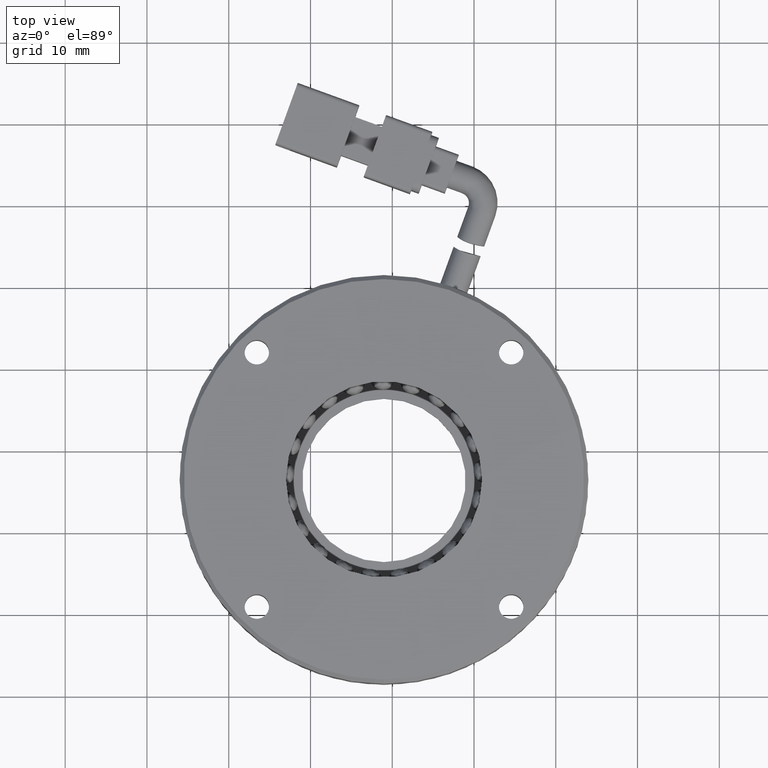
[diagram: clean part render]
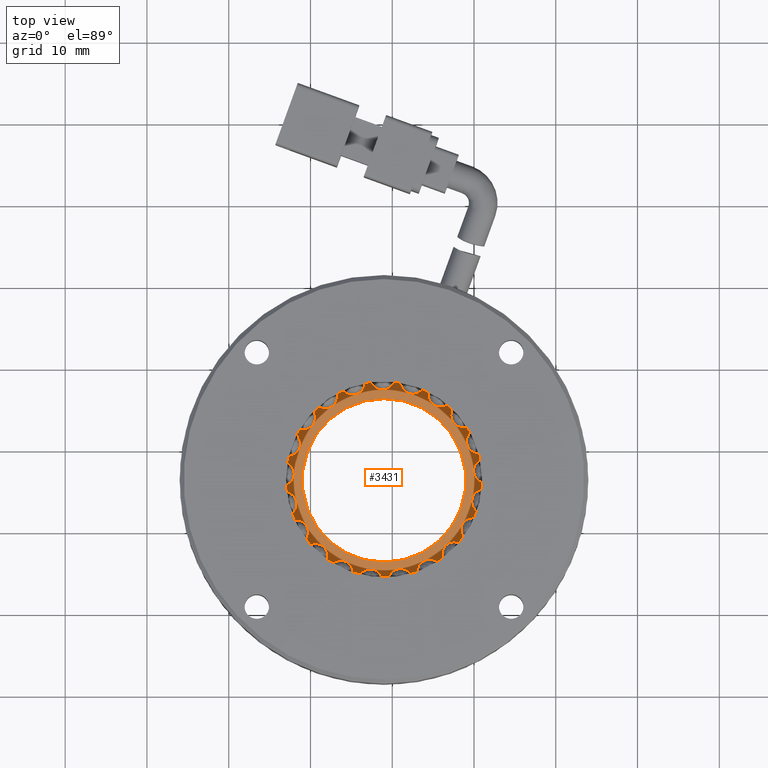
[diagram: same view with one face highlighted and labeled with its STEP entity id]
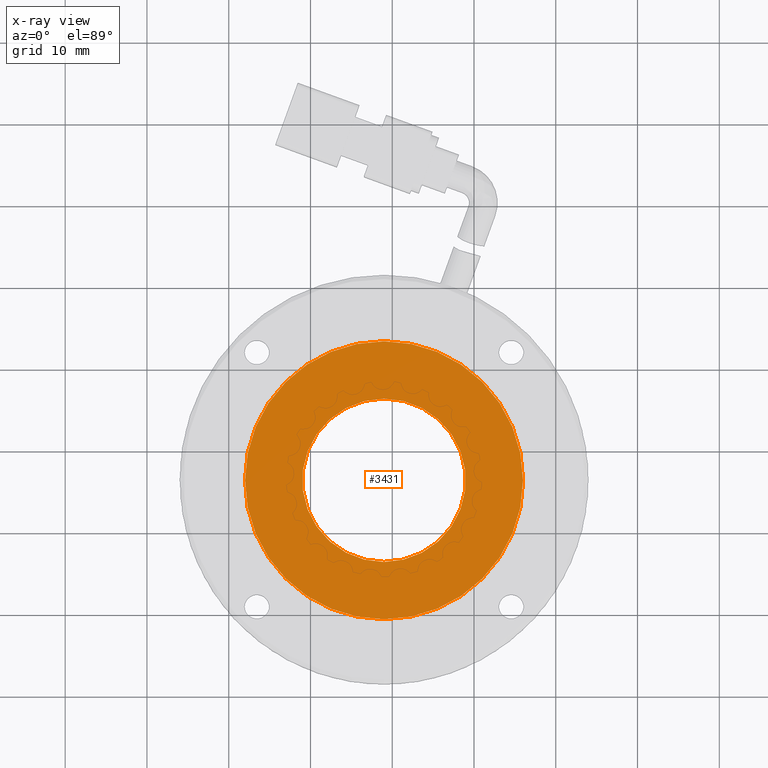
[diagram: x-ray of the same camera — body ghosted, the highlighted face saturated]
A machine part, top view. The second image highlights one B-rep face of the part: STEP entity #3431.
The next image is the same camera in x-ray: the body ghosted, the highlighted face saturated — about 0% of this face is hidden behind the body in this view.
In plain terms, the highlighted planar face has unit normal (-0, -0, -1).
Its self-contained STEP definition (entity closure, byte-faithful):
#668 = DIRECTION ( 'NONE',  ( -1.278084676573917400E-047, 0.0000000000000000000, -1.000000000000000000 ) ) ;
#1286 = VERTEX_POINT ( 'NONE', #4153 ) ;
#1394 = EDGE_CURVE ( 'NONE', #21892, #1286, #25766, .T. ) ;
#1495 = CIRCLE ( 'NONE', #2731, 10.00000000000000000 ) ;
#1586 = CIRCLE ( 'NONE', #15728, 10.00000000000000000 ) ;
#2731 = AXIS2_PLACEMENT_3D ( 'NONE', #12611, #668, #14598 ) ;
#3431 = ADVANCED_FACE ( 'NONE', ( #6986, #11635 ), #16263, .F. ) ;
#4153 = CARTESIAN_POINT ( 'NONE',  ( -121.0083944312394000, -10.53927497453527100, -3.499999999999940500 ) ) ;
#4848 = VERTEX_POINT ( 'NONE', #18826 ) ;
#5153 = EDGE_LOOP ( 'NONE', ( #22352, #14226 ) ) ;
#5237 = ORIENTED_EDGE ( 'NONE', *, *, #13626, .T. ) ;
#6986 = FACE_OUTER_BOUND ( 'NONE', #5153, .T. ) ;
#10078 = AXIS2_PLACEMENT_3D ( 'NONE', #23075, #11132, #25066 ) ;
#11132 = DIRECTION ( 'NONE',  ( -1.278084676573917400E-047, 0.0000000000000000000, -1.000000000000000000 ) ) ;
#11277 = CARTESIAN_POINT ( 'NONE',  ( -121.0083944312394000, 6.460725025464729900, -3.499999999999940500 ) ) ;
#11607 = AXIS2_PLACEMENT_3D ( 'NONE', #20167, #21132, #21215 ) ;
#11635 = FACE_BOUND ( 'NONE', #25684, .T. ) ;
#12611 = CARTESIAN_POINT ( 'NONE',  ( -121.0083944312394000, 6.460725025464729900, -3.499999999999940500 ) ) ;
#13297 = DIRECTION ( 'NONE',  ( 0.0000000000000000000, -1.000000000000000000, 0.0000000000000000000 ) ) ;
#13626 = EDGE_CURVE ( 'NONE', #4848, #21734, #1495, .T. ) ;
#14226 = ORIENTED_EDGE ( 'NONE', *, *, #1394, .F. ) ;
#14598 = DIRECTION ( 'NONE',  ( 0.0000000000000000000, -1.000000000000000000, 0.0000000000000000000 ) ) ;
#15393 = DIRECTION ( 'NONE',  ( -1.278084676573917700E-047, 1.000000000000000000, 1.633500440493055000E-094 ) ) ;
#15486 = DIRECTION ( 'NONE',  ( -1.278084676573917700E-047, -7.983674700015282600E-110, -1.000000000000000000 ) ) ;
#15656 = CARTESIAN_POINT ( 'NONE',  ( -121.0083944312394000, 6.460725025464729900, -3.499999999999940500 ) ) ;
#15728 = AXIS2_PLACEMENT_3D ( 'NONE', #11277, #25226, #13297 ) ;
#15796 = AXIS2_PLACEMENT_3D ( 'NONE', #15656, #15486, #15393 ) ;
#16263 = PLANE ( 'NONE',  #15796 ) ;
#16496 = CARTESIAN_POINT ( 'NONE',  ( -121.0083944312394000, 16.46072502546472900, -3.499999999999940500 ) ) ;
#17994 = EDGE_CURVE ( 'NONE', #21734, #4848, #1586, .T. ) ;
#18291 = ORIENTED_EDGE ( 'NONE', *, *, #17994, .T. ) ;
#18826 = CARTESIAN_POINT ( 'NONE',  ( -121.0083944312394000, -3.539274974535270500, -3.499999999999940500 ) ) ;
#20167 = CARTESIAN_POINT ( 'NONE',  ( -121.0083944312394000, 6.460725025464729900, -3.499999999999940500 ) ) ;
#21132 = DIRECTION ( 'NONE',  ( -1.278084676573917400E-047, 0.0000000000000000000, -1.000000000000000000 ) ) ;
#21215 = DIRECTION ( 'NONE',  ( 0.0000000000000000000, -1.000000000000000000, 0.0000000000000000000 ) ) ;
#21734 = VERTEX_POINT ( 'NONE', #16496 ) ;
#21892 = VERTEX_POINT ( 'NONE', #25347 ) ;
#22352 = ORIENTED_EDGE ( 'NONE', *, *, #23927, .F. ) ;
#23075 = CARTESIAN_POINT ( 'NONE',  ( -121.0083944312394000, 6.460725025464729900, -3.499999999999940500 ) ) ;
#23372 = CIRCLE ( 'NONE', #10078, 17.00000000000000000 ) ;
#23927 = EDGE_CURVE ( 'NONE', #1286, #21892, #23372, .T. ) ;
#25066 = DIRECTION ( 'NONE',  ( 0.0000000000000000000, -1.000000000000000000, 0.0000000000000000000 ) ) ;
#25226 = DIRECTION ( 'NONE',  ( -1.278084676573917400E-047, 0.0000000000000000000, -1.000000000000000000 ) ) ;
#25347 = CARTESIAN_POINT ( 'NONE',  ( -121.0083944312394000, 23.46072502546472900, -3.499999999999940500 ) ) ;
#25684 = EDGE_LOOP ( 'NONE', ( #5237, #18291 ) ) ;
#25766 = CIRCLE ( 'NONE', #11607, 17.00000000000000000 ) ;